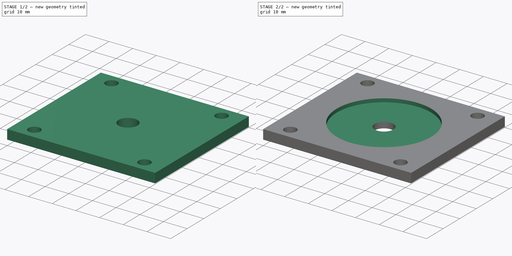
[diagram: build sequence overview — one tinted view per stage of 2, left to right]
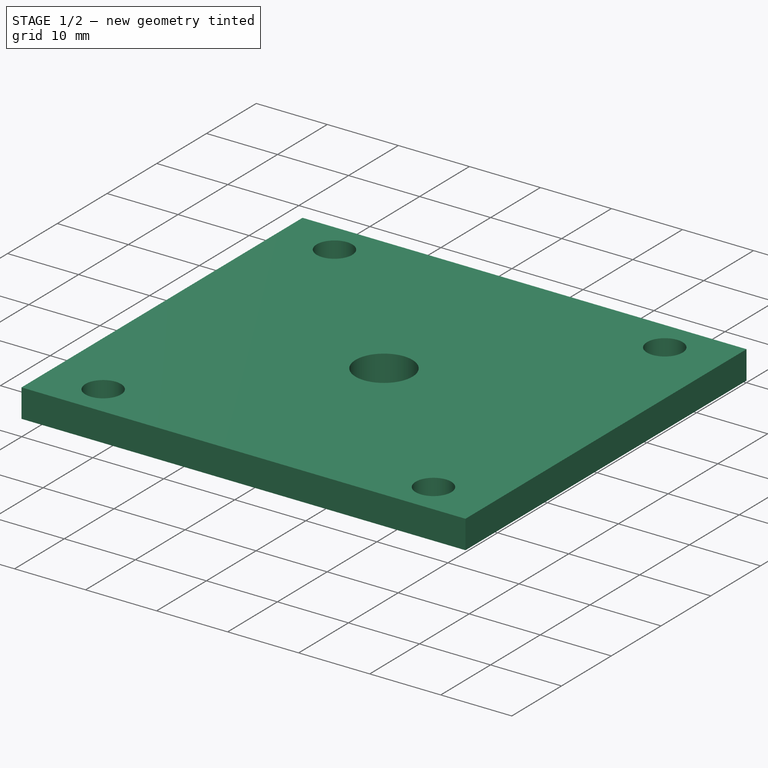
[diagram: stage 1 of 2 — iso view after this stage's code; geometry added in this stage tinted green]
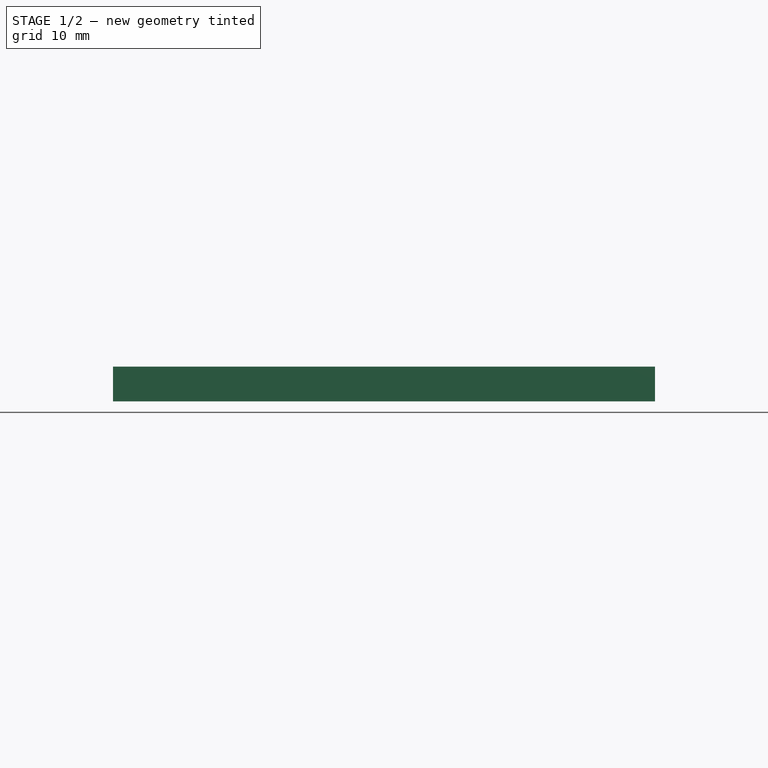
[diagram: stage 1 of 2 — front view after this stage's code; geometry added in this stage tinted green]
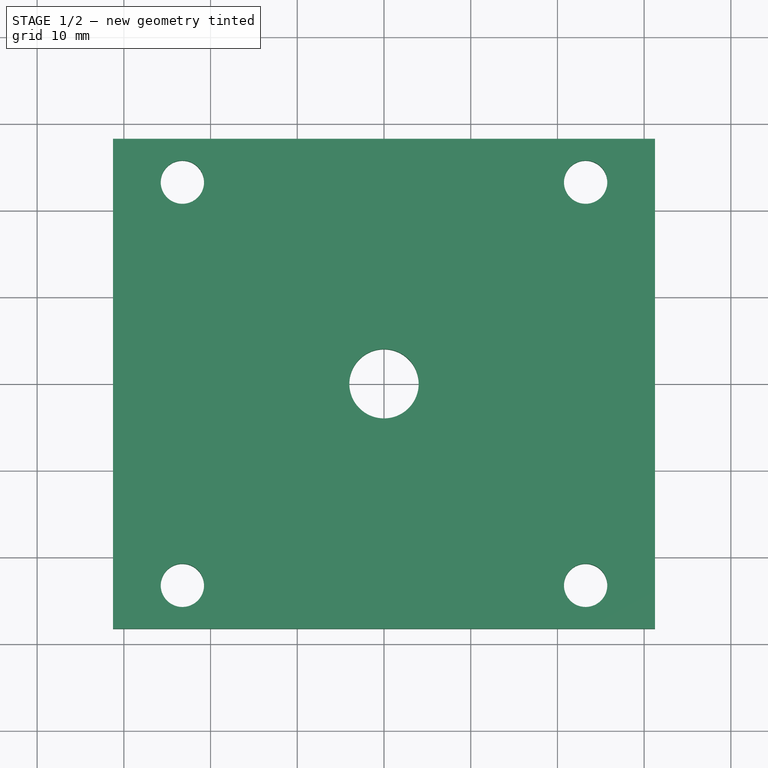
[diagram: stage 1 of 2 — top view after this stage's code; geometry added in this stage tinted green]
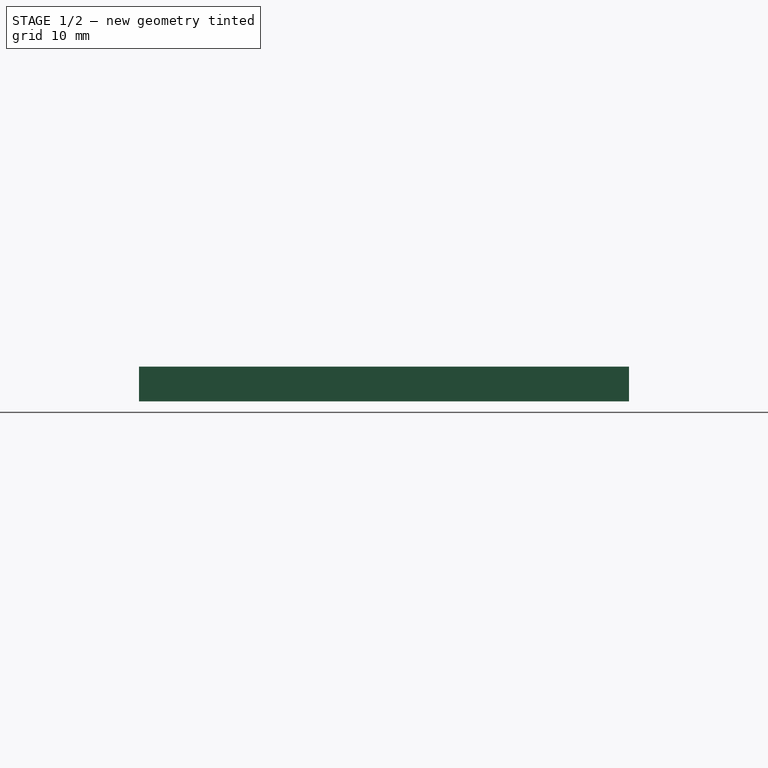
[diagram: stage 1 of 2 — right view after this stage's code; geometry added in this stage tinted green]
FCSTD DOCUMENT  (FreeCAD 0.19R24276 (Git))
Label: Nemo23_support_v3_d40
License: All rights reserved
LicenseURL: http://en.wikipedia.org/wiki/All_rights_reserved
objects: Sketcher::SketchObject×2, PartDesign::Pad×1, PartDesign::Pocket×1, PartDesign::Body×1
note: 7 computed .brp shape members not serialized (recipe doc carries the construction recipe); baked Part::Feature solids carry a one-line shape summary decoded from their .brp

FEATURE [Sketcher::SketchObject] Sketch
  FullyConstrained = true
  MapMode = 5
  Support = -> [XY_Plane]
  sketch-geometry (18):
    g0: Circle CenterX=0 CenterY=0 CenterZ=0 NormalX=0 NormalY=0 NormalZ=1 AngleXU=0 Radius=21
    g1: LineSegment StartX=-23.25 StartY=-23.25 StartZ=0 EndX=23.25 EndY=-23.25 EndZ=0
    g2: LineSegment StartX=23.25 StartY=-23.25 StartZ=0 EndX=23.25 EndY=23.25 EndZ=0
    g3: LineSegment StartX=23.25 StartY=23.25 StartZ=0 EndX=-23.25 EndY=23.25 EndZ=0
    g4: LineSegment StartX=-23.25 StartY=23.25 StartZ=0 EndX=-23.25 EndY=-23.25 EndZ=0
    g5: LineSegment StartX=-28.25 StartY=28.25 StartZ=0 EndX=28.25 EndY=28.25 EndZ=0
    g6: LineSegment StartX=28.25 StartY=28.25 StartZ=0 EndX=28.25 EndY=-28.25 EndZ=0
    g7: LineSegment StartX=28.25 StartY=-28.25 StartZ=0 EndX=-28.25 EndY=-28.25 EndZ=0
    g8: LineSegment StartX=-28.25 StartY=-28.25 StartZ=0 EndX=-28.25 EndY=28.25 EndZ=0
    g9: Circle CenterX=23.25 CenterY=-23.25 CenterZ=0 NormalX=0 NormalY=0 NormalZ=1 AngleXU=0 Radius=2.5
    g10: Circle CenterX=23.25 CenterY=23.25 CenterZ=0 NormalX=0 NormalY=0 NormalZ=1 AngleXU=0 Radius=2.5
    g11: Circle CenterX=-23.25 CenterY=23.25 CenterZ=0 NormalX=0 NormalY=0 NormalZ=1 AngleXU=0 Radius=2.5
    g12: Circle CenterX=-23.25 CenterY=-23.25 CenterZ=0 NormalX=0 NormalY=0 NormalZ=1 AngleXU=0 Radius=2.5
    g13: LineSegment StartX=-31.25 StartY=28.25 StartZ=0 EndX=31.25 EndY=28.25 EndZ=0
    g14: LineSegment StartX=31.25 StartY=28.25 StartZ=0 EndX=31.25 EndY=-28.25 EndZ=0
    g15: LineSegment StartX=31.25 StartY=-28.25 StartZ=0 EndX=-31.25 EndY=-28.25 EndZ=0
    g16: LineSegment StartX=-31.25 StartY=-28.25 StartZ=0 EndX=-31.25 EndY=28.25 EndZ=0
    g17: Circle CenterX=0 CenterY=0 CenterZ=0 NormalX=0 NormalY=0 NormalZ=1 AngleXU=0 Radius=4
  constraints (46):
    c: Coincident(g0,g-1)
    c: Diameter(g0) = 42
    c: Coincident(g1,g2)
    c: Coincident(g2,g3)
    c: Coincident(g3,g4)
    c: Coincident(g4,g1)
    c: Horizontal(g1)
    c: Horizontal(g3)
    c: Vertical(g2)
    c: Vertical(g4)
    c: Symmetric(g3,g1,g0)
    c: Equal(g2,g1)
    c: DistanceX(g1,g1) = 46.5
    c: Coincident(g5,g6)
    c: Coincident(g6,g7)
    c: Coincident(g7,g8)
    c: Coincident(g8,g5)
    c: Horizontal(g5)
    c: Horizontal(g7)
    c: Vertical(g6)
    c: Vertical(g8)
    c: Symmetric(g5,g6,g0)
    c: Equal(g7,g6)
    c: DistanceX(g7,g7) = 56.5
    c: Coincident(g9,g1)
    c: Coincident(g10,g2)
    c: Coincident(g11,g3)
    c: Coincident(g12,g1)
    c: Equal(g9,g12)
    c: Equal(g12,g11)
    c: Equal(g11,g10)
    c: Diameter(g9) = 5
    c: Coincident(g13,g14)
    c: Coincident(g14,g15)
    c: Coincident(g15,g16)
    c: Coincident(g16,g13)
    c: Horizontal(g13)
    c: Horizontal(g15)
    c: Vertical(g14)
    c: Vertical(g16)
    c: DistanceY(g14,g6) = 0
    c: DistanceX(g15,g7) = 3
    c: DistanceY(g5,g13) = 0
    c: Coincident(g17,g-1)
    c: Diameter(g17) = 8
    c: DistanceX(g15,g14) = 62.5
FEATURE [PartDesign::Pad] Pad
  Direction = (1,1,1)
  Length = 4
  Length2 = 100
  Profile = -> Sketch
  Type = 0
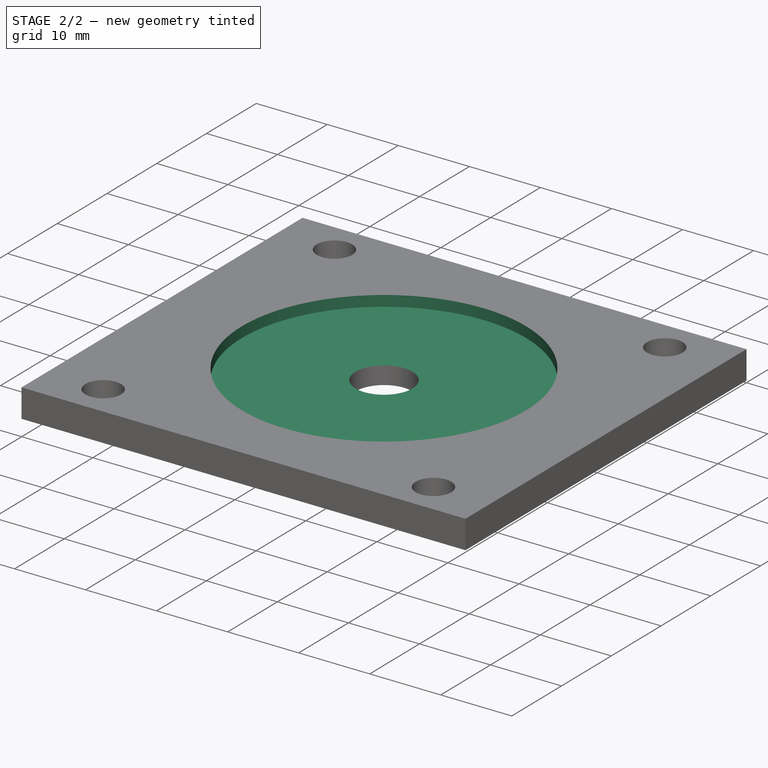
[diagram: stage 2 of 2 — iso view after this stage's code; geometry added in this stage tinted green]
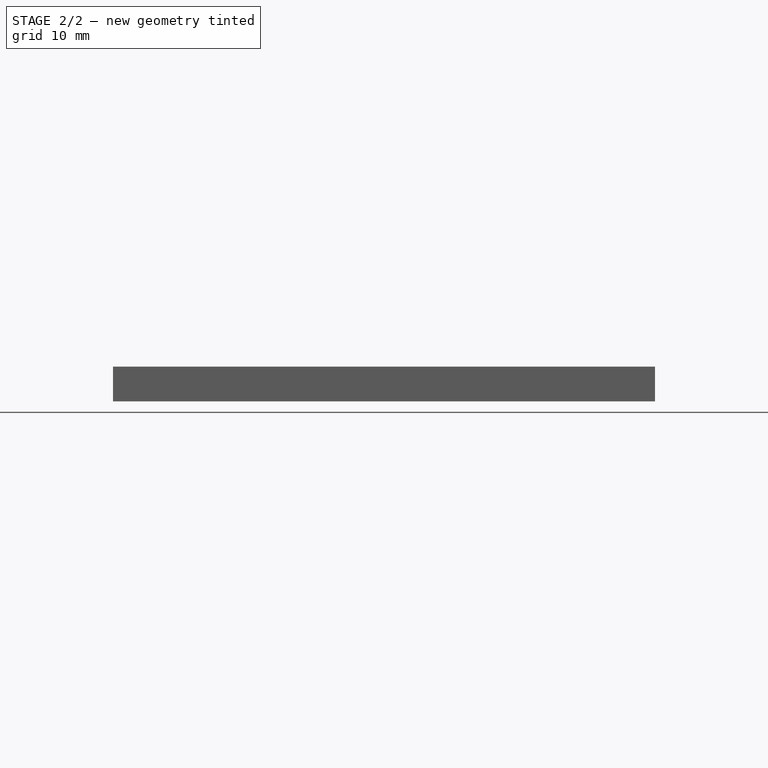
[diagram: stage 2 of 2 — front view after this stage's code; geometry added in this stage tinted green]
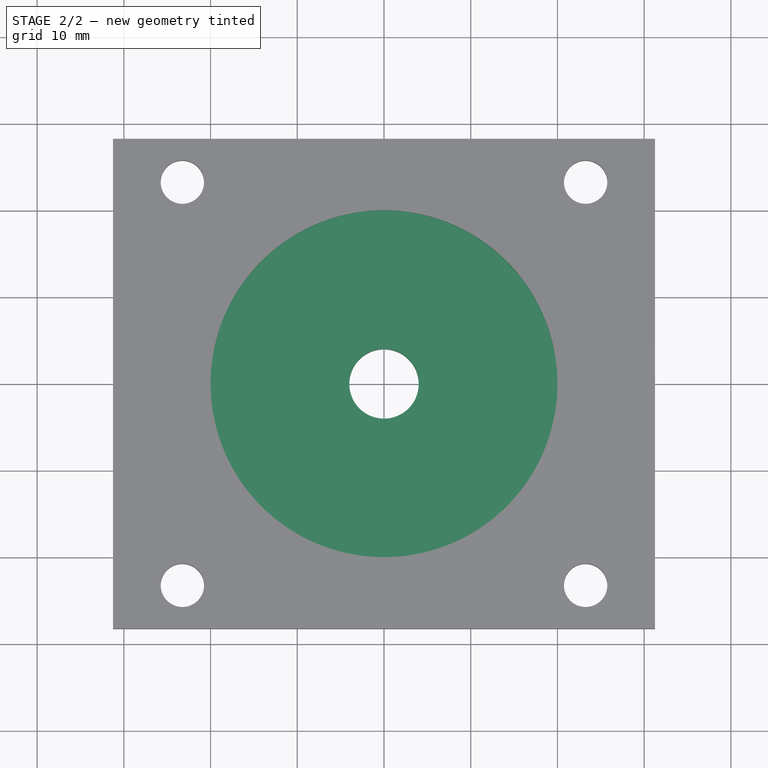
[diagram: stage 2 of 2 — top view after this stage's code; geometry added in this stage tinted green]
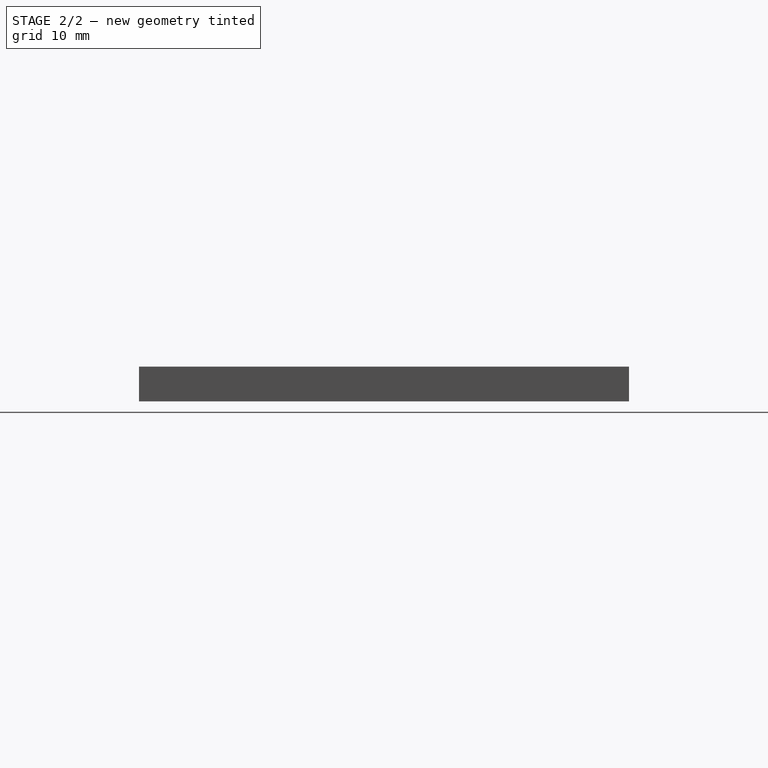
[diagram: stage 2 of 2 — right view after this stage's code; geometry added in this stage tinted green]
FEATURE [Sketcher::SketchObject] Sketch001
  FullyConstrained = true
  MapMode = 5
  Placement = pos=(0,0,4) rot=(0,0,1;0rad)
  Support = -> [Pad]
  sketch-geometry (2):
    g0: Circle CenterX=0 CenterY=0 CenterZ=0 NormalX=0 NormalY=0 NormalZ=1 AngleXU=0 Radius=20
    g1: Circle CenterX=0 CenterY=0 CenterZ=0 NormalX=0 NormalY=0 NormalZ=1 AngleXU=0 Radius=4
  constraints (4):
    c: Coincident(g0,g-1)
    c: Diameter(g0) = 40
    c: Coincident(g1,g0)
    c: Diameter(g1) = 8
FEATURE [PartDesign::Pocket] Pocket
  BaseFeature = -> Pad
  Length = 1.5
  Length2 = 100
  Profile = -> Sketch001
  Type = 0
FEATURE [PartDesign::Body] Body
  Group = -> [Sketch,Pad,Sketch001,Pocket]
  Origin = -> Origin
  Tip = -> Pocket
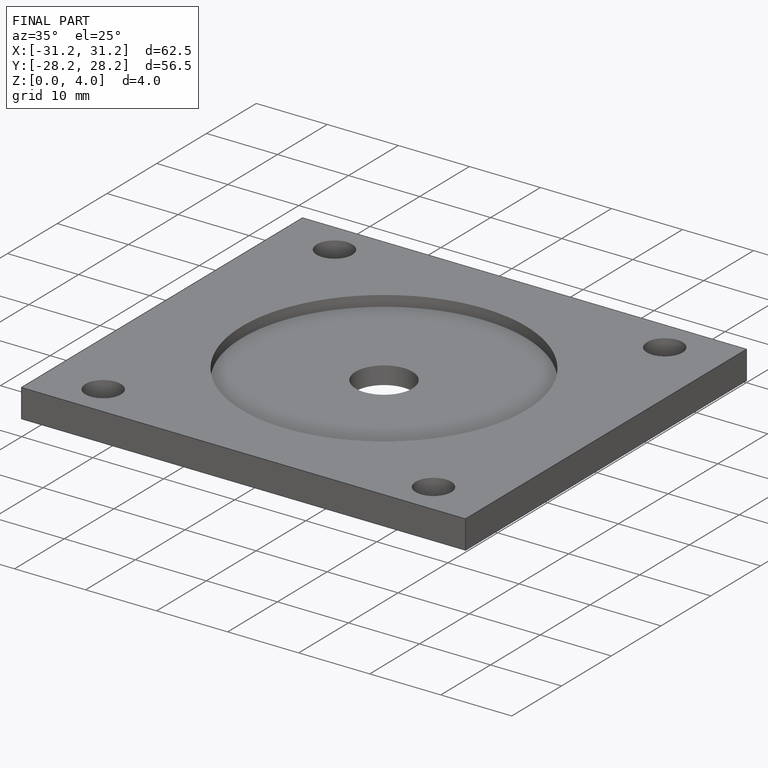
[diagram: finished part — iso view with bounding-box wireframe]
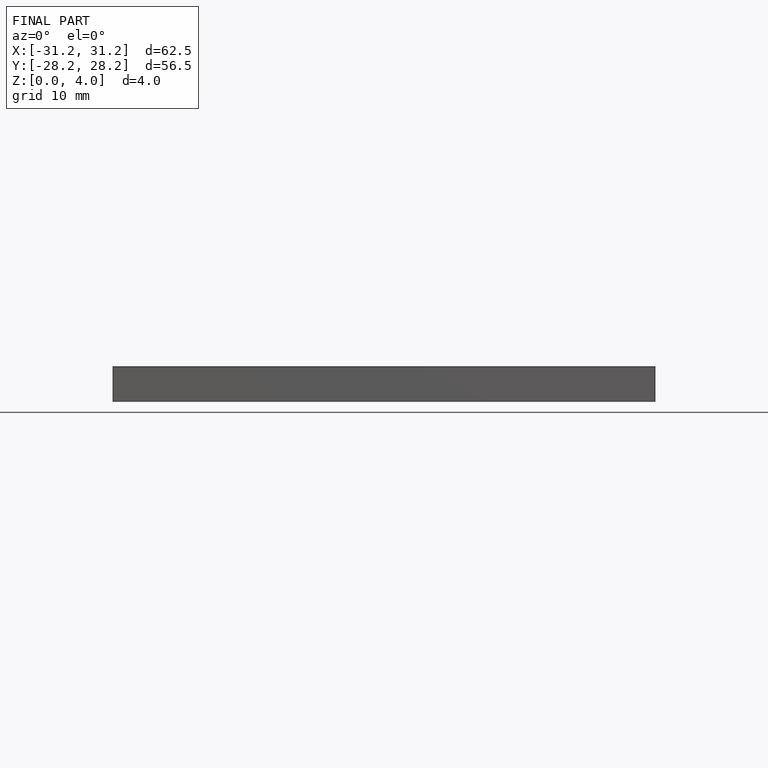
[diagram: finished part — front view with bounding-box wireframe]
